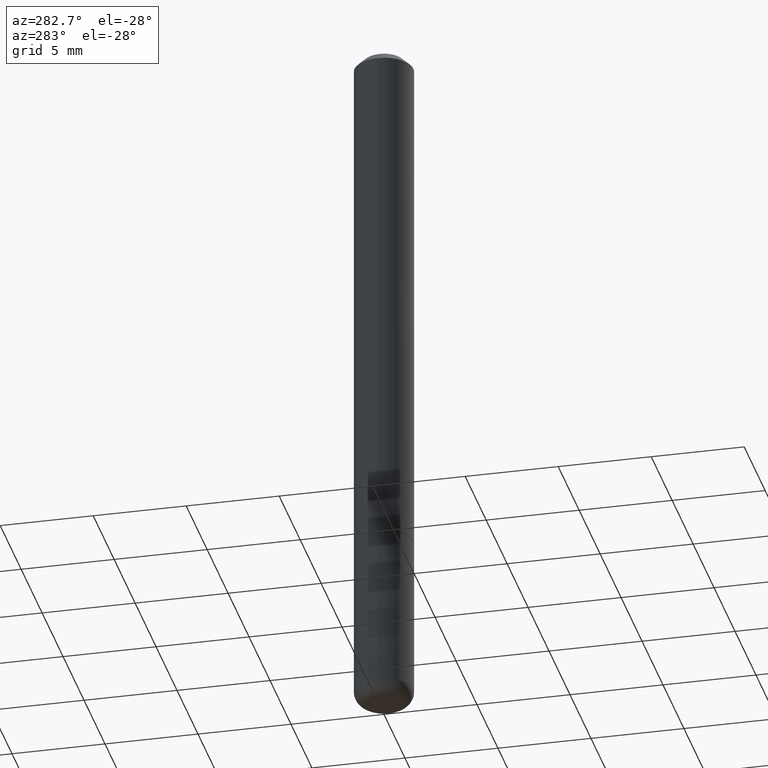
[diagram: clean part render]
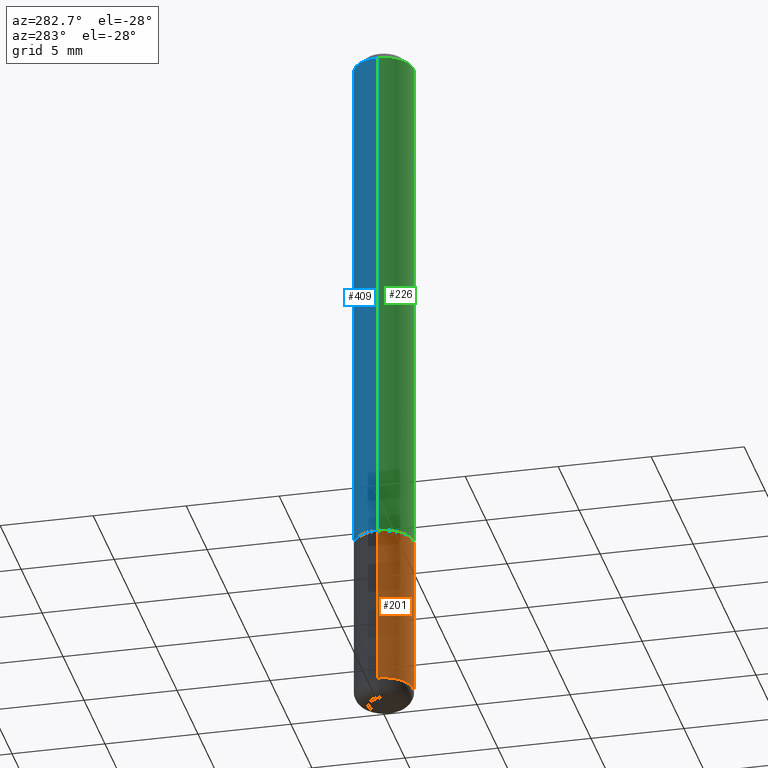
[diagram: same view with three faces highlighted in distinct colors, each labeled with its STEP entity id]
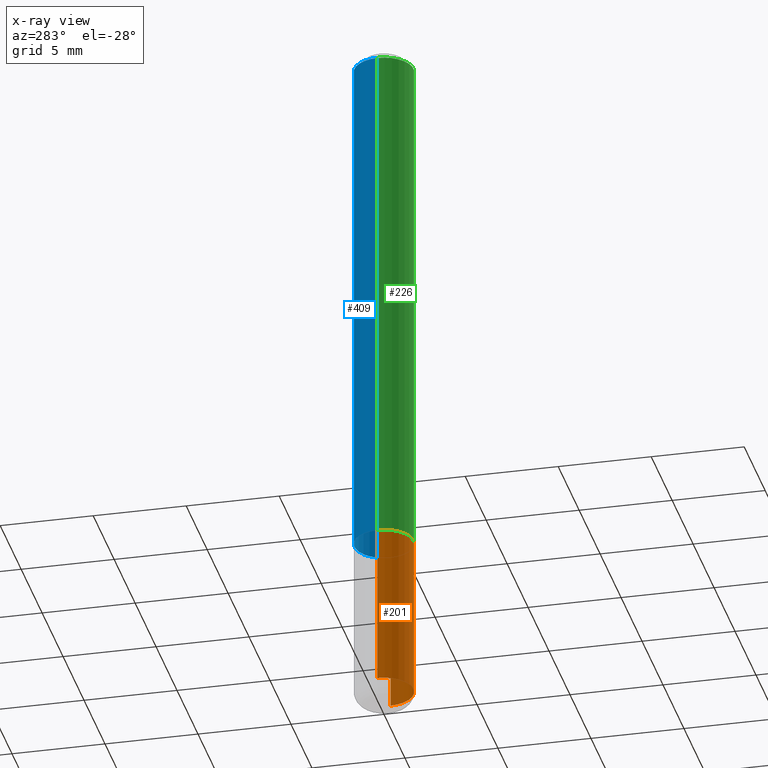
[diagram: x-ray of the same camera — body ghosted, the three highlighted faces saturated]
A machine part, auxiliary view with three faces highlighted in distinct colors.
The next image is the same camera in x-ray (body ghosted, the three faces saturated) — at least one of them is partly hidden behind the body in this view.
Their STEP definitions:

[orange] entity #201 — the highlighted cylindrical surface (edge-blend (fillet) strip) has radius 1.5875 mm, axis along (-0, 0, 1).
#4 = LINE ( 'NONE', #326, #348 ) ;
#17 = ORIENTED_EDGE ( 'NONE', *, *, #274, .T. ) ;
#29 = DIRECTION ( 'NONE',  ( -2.445468806185136877E-29, 3.491481338843145188E-15, 1.000000000000000000 ) ) ;
#74 = VERTEX_POINT ( 'NONE', #281 ) ;
#93 = DIRECTION ( 'NONE',  ( 1.000000000000000000, -6.982962677686262766E-15, 0.000000000000000000 ) ) ;
#98 = ORIENTED_EDGE ( 'NONE', *, *, #285, .F. ) ;
#102 = AXIS2_PLACEMENT_3D ( 'NONE', #357, #165, #135 ) ;
#107 = EDGE_CURVE ( 'NONE', #279, #241, #126, .T. ) ;
#110 = CIRCLE ( 'NONE', #153, 0.06250000000000000000 ) ;
#126 = LINE ( 'NONE', #387, #195 ) ;
#128 = DIRECTION ( 'NONE',  ( -2.445468806185136877E-29, 3.491481338843145188E-15, 1.000000000000000000 ) ) ;
#135 = DIRECTION ( 'NONE',  ( 1.000000000000000000, -6.982962677686262766E-15, 0.000000000000000000 ) ) ;
#149 = ORIENTED_EDGE ( 'NONE', *, *, #107, .T. ) ;
#153 = AXIS2_PLACEMENT_3D ( 'NONE', #164, #293, #93 ) ;
#156 = DIRECTION ( 'NONE',  ( 1.000000000000000000, -6.982962677686266711E-15, 4.876176775795935793E-29 ) ) ;
#164 = CARTESIAN_POINT ( 'NONE',  ( 2.751152406958279232E-29, -3.927916506198539224E-15, -1.125000000000000222 ) ) ;
#165 = DIRECTION ( 'NONE',  ( -2.445468806185136597E-29, 3.491481338843145583E-15, 1.000000000000000000 ) ) ;
#184 = CARTESIAN_POINT ( 'NONE',  ( 0.000000000000000000, 0.000000000000000000, 0.000000000000000000 ) ) ;
#187 = CARTESIAN_POINT ( 'NONE',  ( 0.06250000000000000000, -4.364351673553930894E-15, -1.125000000000000222 ) ) ;
#195 = VECTOR ( 'NONE', #29, 39.37007874015748143 ) ;
#201 = ADVANCED_FACE ( 'NONE', ( #385 ), #218, .T. ) ;
#218 = CYLINDRICAL_SURFACE ( 'NONE', #369, 0.06250000000000000000 ) ;
#225 = EDGE_LOOP ( 'NONE', ( #268, #17, #149, #98 ) ) ;
#241 = VERTEX_POINT ( 'NONE', #187 ) ;
#268 = ORIENTED_EDGE ( 'NONE', *, *, #303, .F. ) ;
#274 = EDGE_CURVE ( 'NONE', #392, #279, #361, .T. ) ;
#279 = VERTEX_POINT ( 'NONE', #353 ) ;
#281 = CARTESIAN_POINT ( 'NONE',  ( -0.06250000000000000000, -4.086107827298919005E-15, -1.125000000000000222 ) ) ;
#285 = EDGE_CURVE ( 'NONE', #74, #241, #110, .T. ) ;
#293 = DIRECTION ( 'NONE',  ( -2.445468806185136597E-29, 3.491481338843145583E-15, 1.000000000000000000 ) ) ;
#303 = EDGE_CURVE ( 'NONE', #392, #74, #4, .T. ) ;
#317 = DIRECTION ( 'NONE',  ( -2.445468806185136597E-29, 3.491481338843145583E-15, 1.000000000000000000 ) ) ;
#326 = CARTESIAN_POINT ( 'NONE',  ( -0.06250000000000000000, 4.440892098500626162E-16, -3.074334431409316114E-30 ) ) ;
#348 = VECTOR ( 'NONE', #128, 39.37007874015748143 ) ;
#353 = CARTESIAN_POINT ( 'NONE',  ( 0.06249999999999999306, -5.568912735454815688E-15, -1.470000000000000195 ) ) ;
#357 = CARTESIAN_POINT ( 'NONE',  ( 3.594839145092150820E-29, -5.132477568099424807E-15, -1.470000000000000195 ) ) ;
#361 = CIRCLE ( 'NONE', #102, 0.06250000000000000000 ) ;
#369 = AXIS2_PLACEMENT_3D ( 'NONE', #184, #317, #156 ) ;
#372 = CARTESIAN_POINT ( 'NONE',  ( -0.06249999999999999306, -4.688388358249362191E-15, -1.470000000000000195 ) ) ;
#385 = FACE_OUTER_BOUND ( 'NONE', #225, .T. ) ;
#387 = CARTESIAN_POINT ( 'NONE',  ( 0.06250000000000000000, -4.364351673553916694E-16, 3.047610484872459871E-30 ) ) ;
#392 = VERTEX_POINT ( 'NONE', #372 ) ;

[blue] entity #409 — the highlighted cylindrical surface (edge-blend (fillet) strip) has radius 1.5875 mm, axis along (-0, 0, 1).
#18 = CARTESIAN_POINT ( 'NONE',  ( 0.000000000000000000, 0.000000000000000000, 0.000000000000000000 ) ) ;
#35 = CARTESIAN_POINT ( 'NONE',  ( -0.06250000000000015266, -1.553038115968214380E-15, -1.124000000000000332 ) ) ;
#38 = CIRCLE ( 'NONE', #136, 0.06250000000000015266 ) ;
#59 = CARTESIAN_POINT ( 'NONE',  ( 0.06250000000000008327, -4.364351673553922611E-16, 3.047610484872464074E-30 ) ) ;
#64 = VECTOR ( 'NONE', #221, 39.37007874015748143 ) ;
#71 = LINE ( 'NONE', #100, #64 ) ;
#82 = ORIENTED_EDGE ( 'NONE', *, *, #200, .F. ) ;
#92 = CARTESIAN_POINT ( 'NONE',  ( 0.06250000000000001388, -4.986107516375840208E-16, -0.02000000000000006981 ) ) ;
#100 = CARTESIAN_POINT ( 'NONE',  ( -0.06250000000000008327, 4.440892098500632078E-16, -3.074334431409319967E-30 ) ) ;
#111 = CYLINDRICAL_SURFACE ( 'NONE', #294, 0.06250000000000008327 ) ;
#120 = LINE ( 'NONE', #59, #210 ) ;
#129 = VERTEX_POINT ( 'NONE', #92 ) ;
#136 = AXIS2_PLACEMENT_3D ( 'NONE', #140, #273, #374 ) ;
#139 = EDGE_LOOP ( 'NONE', ( #235, #373, #370, #82 ) ) ;
#140 = CARTESIAN_POINT ( 'NONE',  ( 2.748706938152094189E-29, -3.924425024859696217E-15, -1.124000000000000332 ) ) ;
#167 = AXIS2_PLACEMENT_3D ( 'NONE', #179, #414, #284 ) ;
#179 = CARTESIAN_POINT ( 'NONE',  ( 4.890937612370289799E-31, -6.982962677686315028E-17, -0.02000000000000006981 ) ) ;
#192 = EDGE_CURVE ( 'NONE', #129, #310, #307, .T. ) ;
#200 = EDGE_CURVE ( 'NONE', #322, #129, #120, .T. ) ;
#202 = EDGE_CURVE ( 'NONE', #336, #310, #71, .T. ) ;
#204 = DIRECTION ( 'NONE',  ( -2.445468806185136597E-29, 3.491481338843145583E-15, 1.000000000000000000 ) ) ;
#210 = VECTOR ( 'NONE', #381, 39.37007874015748143 ) ;
#221 = DIRECTION ( 'NONE',  ( -2.445468806185136877E-29, 3.491481338843145188E-15, 1.000000000000000000 ) ) ;
#234 = DIRECTION ( 'NONE',  ( 1.000000000000000000, -6.982962677686266711E-15, 4.876176775795935793E-29 ) ) ;
#235 = ORIENTED_EDGE ( 'NONE', *, *, #364, .T. ) ;
#261 = CARTESIAN_POINT ( 'NONE',  ( -0.06250000000000001388, 3.666055405785286670E-16, -0.02000000000000006981 ) ) ;
#273 = DIRECTION ( 'NONE',  ( -2.445468806185136597E-29, 3.491481338843145583E-15, 1.000000000000000000 ) ) ;
#284 = DIRECTION ( 'NONE',  ( 1.000000000000000000, -6.982962677686267499E-15, 0.000000000000000000 ) ) ;
#291 = CARTESIAN_POINT ( 'NONE',  ( 0.06250000000000015266, -4.360860192215089464E-15, -1.124000000000000332 ) ) ;
#294 = AXIS2_PLACEMENT_3D ( 'NONE', #18, #204, #234 ) ;
#307 = CIRCLE ( 'NONE', #167, 0.06250000000000001388 ) ;
#310 = VERTEX_POINT ( 'NONE', #261 ) ;
#322 = VERTEX_POINT ( 'NONE', #291 ) ;
#335 = FACE_OUTER_BOUND ( 'NONE', #139, .T. ) ;
#336 = VERTEX_POINT ( 'NONE', #35 ) ;
#364 = EDGE_CURVE ( 'NONE', #322, #336, #38, .T. ) ;
#370 = ORIENTED_EDGE ( 'NONE', *, *, #192, .F. ) ;
#373 = ORIENTED_EDGE ( 'NONE', *, *, #202, .T. ) ;
#374 = DIRECTION ( 'NONE',  ( 1.000000000000000000, -6.982962677686269077E-15, 0.000000000000000000 ) ) ;
#381 = DIRECTION ( 'NONE',  ( -2.445468806185136877E-29, 3.491481338843145188E-15, 1.000000000000000000 ) ) ;
#409 = ADVANCED_FACE ( 'NONE', ( #335 ), #111, .T. ) ;
#414 = DIRECTION ( 'NONE',  ( -2.445468806185136597E-29, 3.491481338843145583E-15, 1.000000000000000000 ) ) ;

[green] entity #226 — the highlighted cylindrical surface (edge-blend (fillet) strip) has radius 1.5875 mm, axis along (-0, 0, 1).
#9 = FACE_OUTER_BOUND ( 'NONE', #376, .T. ) ;
#34 = CYLINDRICAL_SURFACE ( 'NONE', #244, 0.06250000000000008327 ) ;
#35 = CARTESIAN_POINT ( 'NONE',  ( -0.06250000000000015266, -1.553038115968214380E-15, -1.124000000000000332 ) ) ;
#39 = DIRECTION ( 'NONE',  ( 1.000000000000000000, -6.982962677686266711E-15, 4.876176775795935793E-29 ) ) ;
#51 = ORIENTED_EDGE ( 'NONE', *, *, #83, .F. ) ;
#59 = CARTESIAN_POINT ( 'NONE',  ( 0.06250000000000008327, -4.364351673553922611E-16, 3.047610484872464074E-30 ) ) ;
#62 = DIRECTION ( 'NONE',  ( -2.445468806185136597E-29, 3.491481338843145583E-15, 1.000000000000000000 ) ) ;
#64 = VECTOR ( 'NONE', #221, 39.37007874015748143 ) ;
#71 = LINE ( 'NONE', #100, #64 ) ;
#83 = EDGE_CURVE ( 'NONE', #310, #129, #131, .T. ) ;
#92 = CARTESIAN_POINT ( 'NONE',  ( 0.06250000000000001388, -4.986107516375840208E-16, -0.02000000000000006981 ) ) ;
#94 = CARTESIAN_POINT ( 'NONE',  ( 2.748706938152094189E-29, -3.924425024859696217E-15, -1.124000000000000332 ) ) ;
#100 = CARTESIAN_POINT ( 'NONE',  ( -0.06250000000000008327, 4.440892098500632078E-16, -3.074334431409319967E-30 ) ) ;
#120 = LINE ( 'NONE', #59, #210 ) ;
#129 = VERTEX_POINT ( 'NONE', #92 ) ;
#131 = CIRCLE ( 'NONE', #230, 0.06250000000000001388 ) ;
#151 = CARTESIAN_POINT ( 'NONE',  ( 4.890937612370289799E-31, -6.982962677686315028E-17, -0.02000000000000006981 ) ) ;
#159 = CARTESIAN_POINT ( 'NONE',  ( 0.000000000000000000, 0.000000000000000000, 0.000000000000000000 ) ) ;
#169 = ORIENTED_EDGE ( 'NONE', *, *, #200, .T. ) ;
#200 = EDGE_CURVE ( 'NONE', #322, #129, #120, .T. ) ;
#202 = EDGE_CURVE ( 'NONE', #336, #310, #71, .T. ) ;
#210 = VECTOR ( 'NONE', #381, 39.37007874015748143 ) ;
#215 = DIRECTION ( 'NONE',  ( 1.000000000000000000, -6.982962677686267499E-15, 0.000000000000000000 ) ) ;
#221 = DIRECTION ( 'NONE',  ( -2.445468806185136877E-29, 3.491481338843145188E-15, 1.000000000000000000 ) ) ;
#226 = ADVANCED_FACE ( 'NONE', ( #9 ), #34, .T. ) ;
#230 = AXIS2_PLACEMENT_3D ( 'NONE', #151, #62, #215 ) ;
#232 = EDGE_CURVE ( 'NONE', #336, #322, #413, .T. ) ;
#244 = AXIS2_PLACEMENT_3D ( 'NONE', #159, #362, #39 ) ;
#261 = CARTESIAN_POINT ( 'NONE',  ( -0.06250000000000001388, 3.666055405785286670E-16, -0.02000000000000006981 ) ) ;
#262 = DIRECTION ( 'NONE',  ( 1.000000000000000000, -6.982962677686269077E-15, 0.000000000000000000 ) ) ;
#291 = CARTESIAN_POINT ( 'NONE',  ( 0.06250000000000015266, -4.360860192215089464E-15, -1.124000000000000332 ) ) ;
#299 = AXIS2_PLACEMENT_3D ( 'NONE', #94, #321, #262 ) ;
#302 = ORIENTED_EDGE ( 'NONE', *, *, #232, .T. ) ;
#310 = VERTEX_POINT ( 'NONE', #261 ) ;
#321 = DIRECTION ( 'NONE',  ( -2.445468806185136597E-29, 3.491481338843145583E-15, 1.000000000000000000 ) ) ;
#322 = VERTEX_POINT ( 'NONE', #291 ) ;
#336 = VERTEX_POINT ( 'NONE', #35 ) ;
#362 = DIRECTION ( 'NONE',  ( -2.445468806185136597E-29, 3.491481338843145583E-15, 1.000000000000000000 ) ) ;
#366 = ORIENTED_EDGE ( 'NONE', *, *, #202, .F. ) ;
#376 = EDGE_LOOP ( 'NONE', ( #366, #302, #169, #51 ) ) ;
#381 = DIRECTION ( 'NONE',  ( -2.445468806185136877E-29, 3.491481338843145188E-15, 1.000000000000000000 ) ) ;
#413 = CIRCLE ( 'NONE', #299, 0.06250000000000015266 ) ;